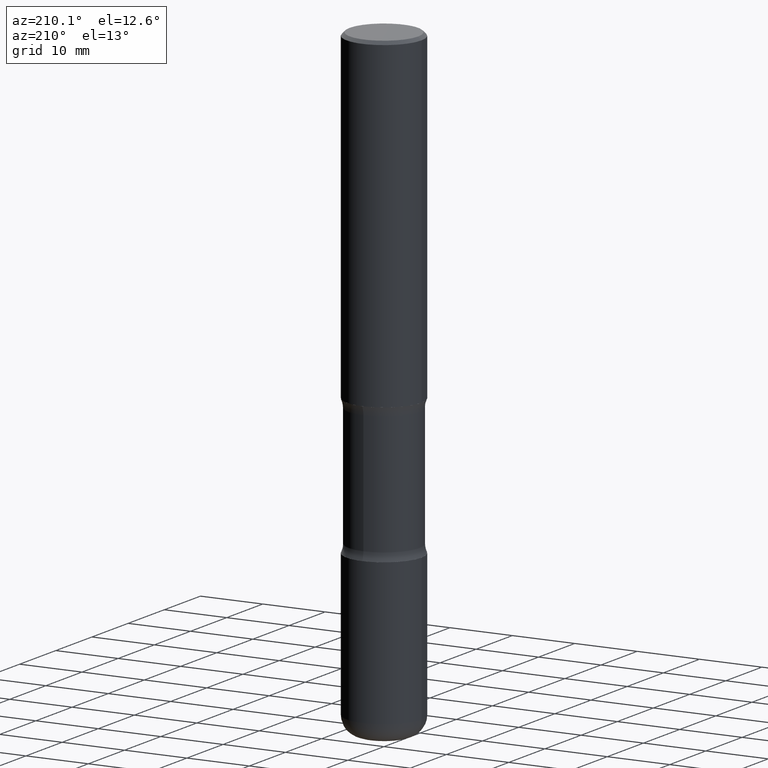
[diagram: clean part render]
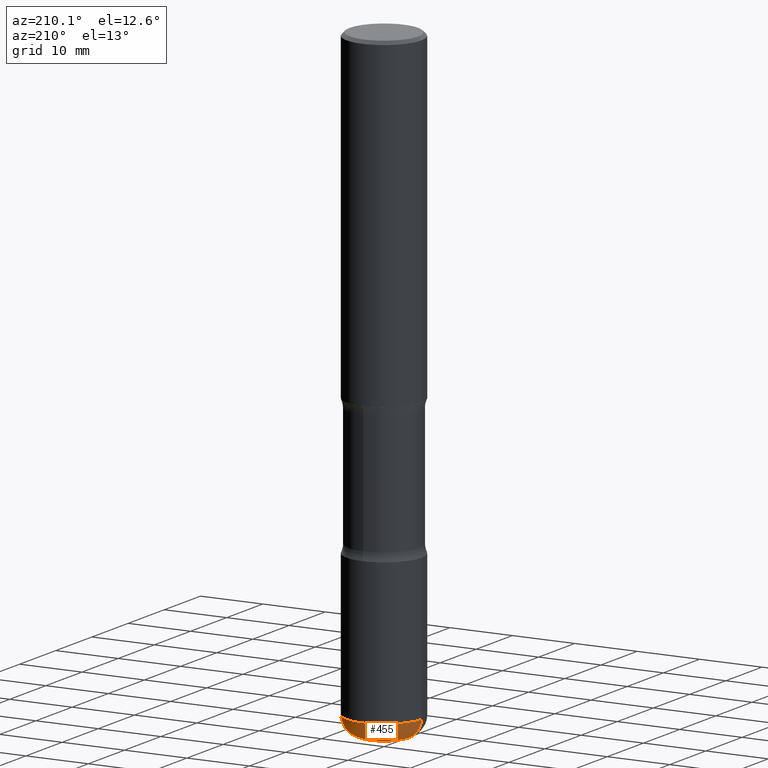
[diagram: same view with one face highlighted and labeled with its STEP entity id]
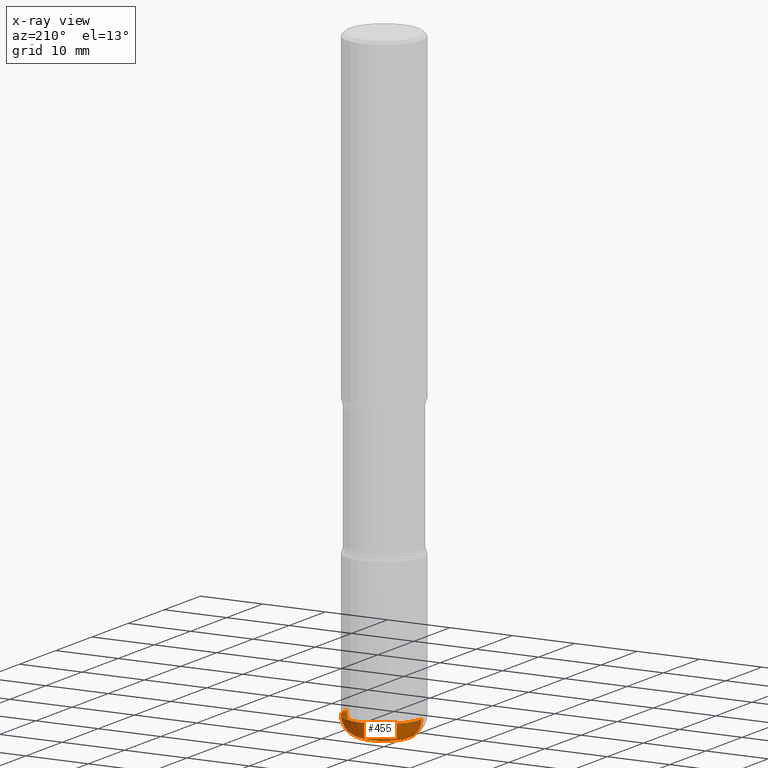
[diagram: x-ray of the same camera — body ghosted, the highlighted face saturated]
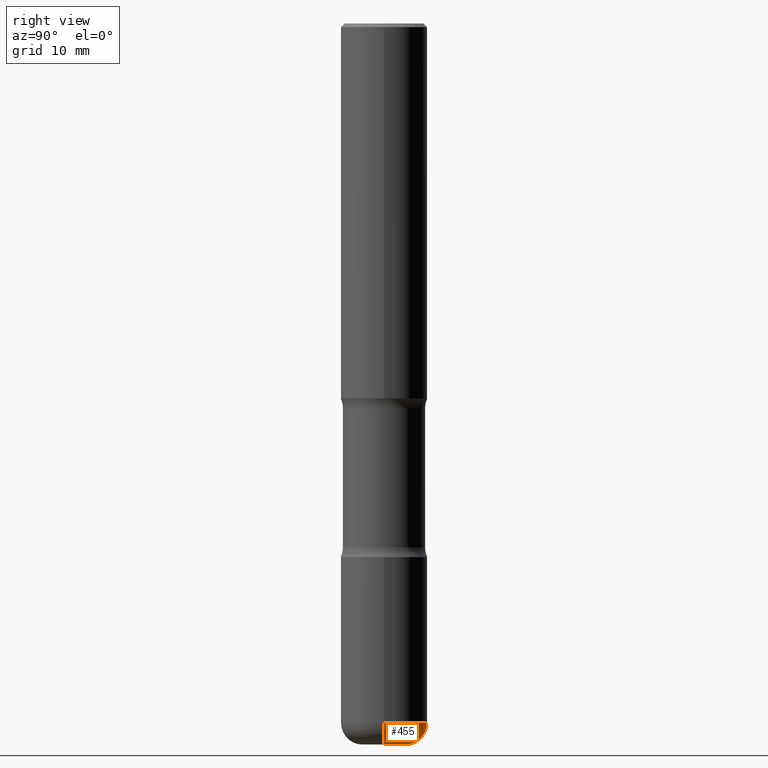
[diagram: same view with one face highlighted and labeled with its STEP entity id]
A machine part, auxiliary view. The second image highlights one B-rep face of the part: STEP entity #455.
The next image is the same camera in x-ray: the body ghosted, the highlighted face saturated — about 0% of this face is hidden behind the body in this view.
A second angle (right view) of the same face is appended — the face is thin or edge-on in the first view.
In plain terms, the highlighted toroidal blend (fillet) surface has major radius 2.9997 mm and minor (blend) radius 2.9997 mm.
Its self-contained STEP definition (entity closure, byte-faithful):
#6 = VERTEX_POINT ( 'NONE', #469 ) ;
#20 = CARTESIAN_POINT ( 'NONE',  ( -0.1181000000000002187, -1.249446711397540556E-14, -3.818899999999998851 ) ) ;
#35 = DIRECTION ( 'NONE',  ( 1.000000000000000000, -6.982962677686266711E-15, 0.000000000000000000 ) ) ;
#39 = DIRECTION ( 'NONE',  ( -2.445468806185136597E-29, 3.491481338843145583E-15, 1.000000000000000000 ) ) ;
#43 = AXIS2_PLACEMENT_3D ( 'NONE', #377, #334, #308 ) ;
#65 = CIRCLE ( 'NONE', #500, 0.2362000000000002153 ) ;
#67 = CARTESIAN_POINT ( 'NONE',  ( 0.1181000000000002326, -1.457064992326021168E-14, -3.936999999999998945 ) ) ;
#95 = EDGE_CURVE ( 'NONE', #6, #239, #65, .T. ) ;
#101 = VERTEX_POINT ( 'NONE', #285 ) ;
#107 = AXIS2_PLACEMENT_3D ( 'NONE', #108, #191, #536 ) ;
#108 = CARTESIAN_POINT ( 'NONE',  ( 0.1181000000000002187, -1.415830597714283439E-14, -3.818899999999998851 ) ) ;
#132 = ORIENTED_EDGE ( 'NONE', *, *, #444, .T. ) ;
#157 = TOROIDAL_SURFACE ( 'NONE', #501, 0.1181000000000002187, 0.1180999999999999966 ) ;
#177 = AXIS2_PLACEMENT_3D ( 'NONE', #20, #532, #184 ) ;
#183 = EDGE_CURVE ( 'NONE', #458, #101, #243, .T. ) ;
#184 = DIRECTION ( 'NONE',  ( -1.000000000000000000, 7.105427357601005014E-15, 0.000000000000000000 ) ) ;
#191 = DIRECTION ( 'NONE',  ( -6.982962677686266711E-15, -1.000000000000000000, 3.491481338843145583E-15 ) ) ;
#193 = DIRECTION ( 'NONE',  ( -2.445468806185136597E-29, 3.491481338843145583E-15, 1.000000000000000000 ) ) ;
#231 = CARTESIAN_POINT ( 'NONE',  ( 9.339000823940415305E-29, -1.333361808490808613E-14, -3.818899999999998851 ) ) ;
#239 = VERTEX_POINT ( 'NONE', #484 ) ;
#243 = CIRCLE ( 'NONE', #43, 0.1181000000000002326 ) ;
#285 = CARTESIAN_POINT ( 'NONE',  ( -0.1181000000000002326, -1.228106360156775550E-14, -3.936999999999998945 ) ) ;
#308 = DIRECTION ( 'NONE',  ( 1.000000000000000000, -6.982962677686275388E-15, 0.000000000000000000 ) ) ;
#313 = ORIENTED_EDGE ( 'NONE', *, *, #95, .F. ) ;
#334 = DIRECTION ( 'NONE',  ( -2.445468806185136597E-29, 3.491481338843145583E-15, 1.000000000000000000 ) ) ;
#350 = FACE_OUTER_BOUND ( 'NONE', #503, .T. ) ;
#358 = EDGE_CURVE ( 'NONE', #458, #6, #491, .T. ) ;
#359 = DIRECTION ( 'NONE',  ( 1.000000000000000000, -6.982962677686266711E-15, 4.883557194083113462E-29 ) ) ;
#377 = CARTESIAN_POINT ( 'NONE',  ( 9.627810689950880306E-29, -1.374596203102546026E-14, -3.936999999999998945 ) ) ;
#444 = EDGE_CURVE ( 'NONE', #101, #239, #451, .T. ) ;
#451 = CIRCLE ( 'NONE', #177, 0.1180999999999999828 ) ;
#455 = ADVANCED_FACE ( 'NONE', ( #350 ), #157, .T. ) ;
#458 = VERTEX_POINT ( 'NONE', #67 ) ;
#469 = CARTESIAN_POINT ( 'NONE',  ( 0.2362000000000002153, -1.498299386937758423E-14, -3.818899999999998851 ) ) ;
#484 = CARTESIAN_POINT ( 'NONE',  ( -0.2362000000000002153, -1.165531614304272658E-14, -3.818899999999998851 ) ) ;
#489 = ORIENTED_EDGE ( 'NONE', *, *, #183, .T. ) ;
#491 = CIRCLE ( 'NONE', #107, 0.1180999999999999828 ) ;
#493 = ORIENTED_EDGE ( 'NONE', *, *, #358, .F. ) ;
#500 = AXIS2_PLACEMENT_3D ( 'NONE', #512, #39, #35 ) ;
#501 = AXIS2_PLACEMENT_3D ( 'NONE', #231, #193, #359 ) ;
#503 = EDGE_LOOP ( 'NONE', ( #489, #132, #313, #493 ) ) ;
#512 = CARTESIAN_POINT ( 'NONE',  ( 9.339000823940415305E-29, -1.333361808490808613E-14, -3.818899999999998851 ) ) ;
#532 = DIRECTION ( 'NONE',  ( 7.105427357601001859E-15, 1.000000000000000000, -3.491481338843145583E-15 ) ) ;
#536 = DIRECTION ( 'NONE',  ( 1.000000000000000000, -6.982962677686273810E-15, 0.000000000000000000 ) ) ;